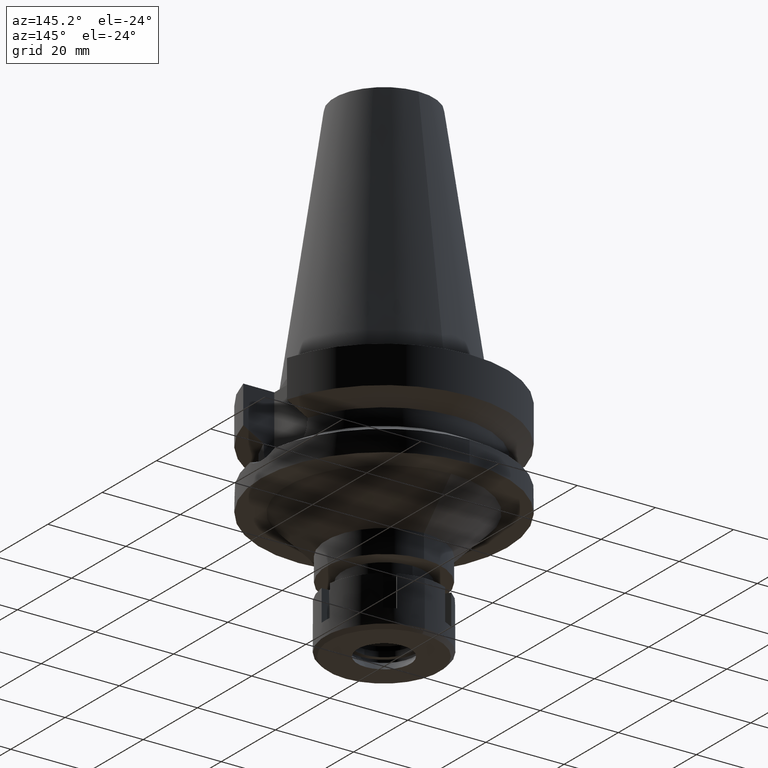
[diagram: clean part render]
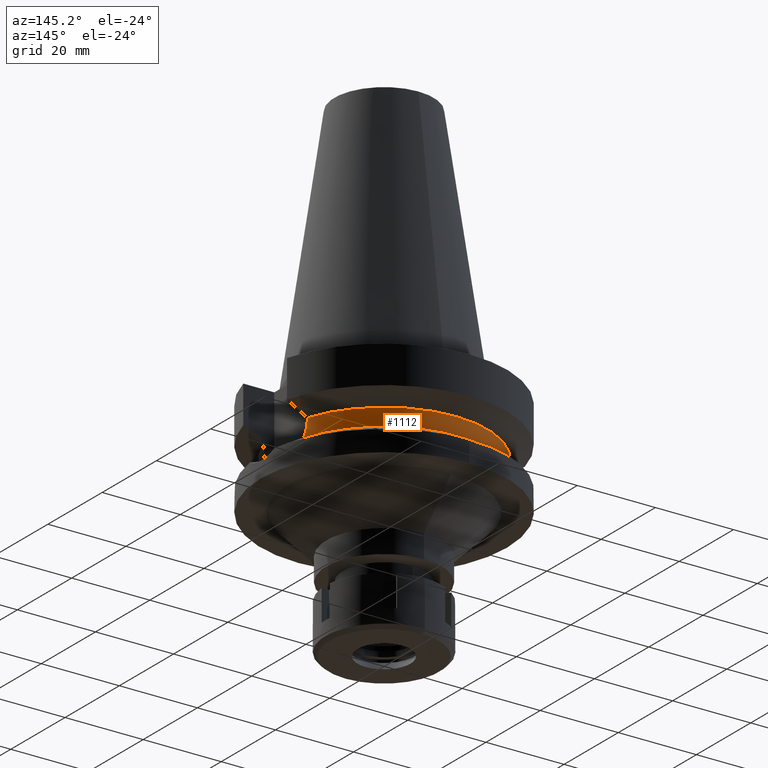
[diagram: same view with one face highlighted and labeled with its STEP entity id]
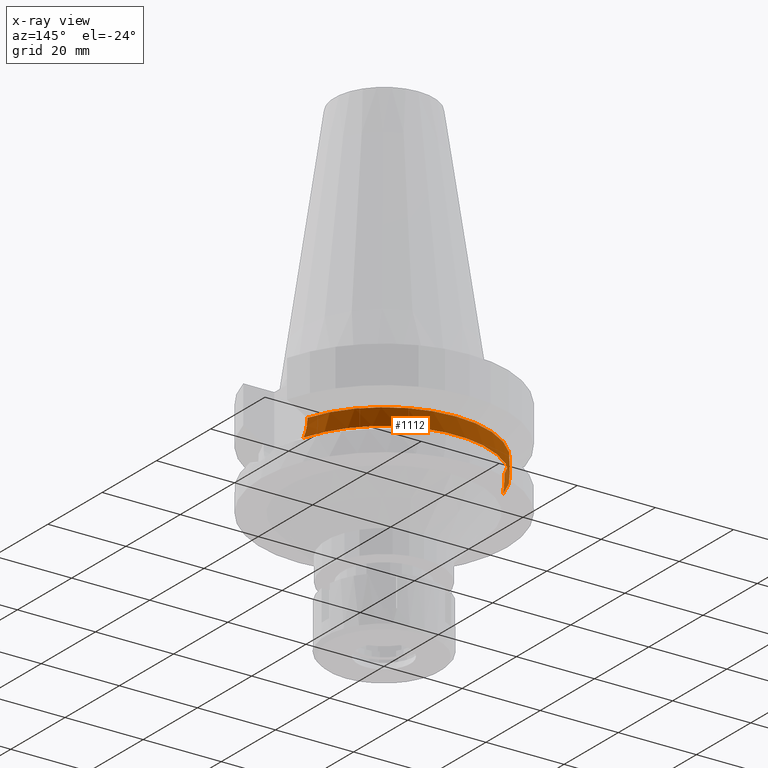
[diagram: x-ray of the same camera — body ghosted, the highlighted face saturated]
A machine part, auxiliary view. The second image highlights one B-rep face of the part: STEP entity #1112.
The next image is the same camera in x-ray: the body ghosted, the highlighted face saturated — about 2% of this face is hidden behind the body in this view.
In plain terms, the highlighted cylindrical surface (partial cylindrical patch) has radius 26.5 mm, axis along (0, 0, -1).
Its self-contained STEP definition (entity closure, byte-faithful):
#28 = CARTESIAN_POINT ( 'NONE',  ( -25.27268209811968802, 7.971799596790734910, -16.08124396125984035 ) ) ;
#84 = B_SPLINE_CURVE_WITH_KNOTS ( 'NONE', 3,
 ( #1409, #294, #1179, #28, #3103, #2493, #2477, #631, #2509, #1723, #1126, #2219, #2546, #2205 ),
 .UNSPECIFIED., .F., .F.,
 ( 4, 2, 2, 1, 1, 2, 2, 4 ),
 ( 0.0000000000000000000, 0.2500000000000218159, 0.3750000000000313638, 0.4375000000000362488, 0.4687500000000385247, 0.4843750000000385247, 0.5000000000000385247, 1.000000000000000000 ),
 .UNSPECIFIED. ) ;
#99 = CARTESIAN_POINT ( 'NONE',  ( 25.24772266958000344, 8.050000000000000711, -14.94999999999999929 ) ) ;
#134 = CARTESIAN_POINT ( 'NONE',  ( 25.48481052201388408, 7.266715036218282187, -18.43216239893522257 ) ) ;
#166 = ORIENTED_EDGE ( 'NONE', *, *, #2542, .T. ) ;
#236 = DIRECTION ( 'NONE',  ( 0.0000000000000000000, 0.0000000000000000000, -1.000000000000000000 ) ) ;
#285 = EDGE_CURVE ( 'NONE', #1099, #1447, #84, .T. ) ;
#294 = CARTESIAN_POINT ( 'NONE',  ( -25.24772266958000344, 8.050000000000016698, -15.26995863536299147 ) ) ;
#471 = CIRCLE ( 'NONE', #3119, 26.50000000000000711 ) ;
#505 = DIRECTION ( 'NONE',  ( 0.9634623335000935818, 0.2678438573619981722, 0.0000000000000000000 ) ) ;
#631 = CARTESIAN_POINT ( 'NONE',  ( -25.31202244740001461, 7.845715351219204159, -16.75285925630916140 ) ) ;
#732 = ORIENTED_EDGE ( 'NONE', *, *, #1346, .F. ) ;
#743 = AXIS2_PLACEMENT_3D ( 'NONE', #1330, #2968, #505 ) ;
#762 = DIRECTION ( 'NONE',  ( 2.970974673508918509E-06, -9.318061218959746263E-06, 0.9999999999521734795 ) ) ;
#792 = ORIENTED_EDGE ( 'NONE', *, *, #1106, .T. ) ;
#828 = VERTEX_POINT ( 'NONE', #3396 ) ;
#856 = CARTESIAN_POINT ( 'NONE',  ( 25.24772266958000344, 8.050000000000000711, -14.94999999999999929 ) ) ;
#911 = LINE ( 'NONE', #965, #2338 ) ;
#958 = CARTESIAN_POINT ( 'NONE',  ( 25.39162493938946952, 7.584889300339769491, -17.65175237885825510 ) ) ;
#965 = CARTESIAN_POINT ( 'NONE',  ( -25.24772217544000341, 8.050001549810000157, -14.45224515668999921 ) ) ;
#969 = EDGE_CURVE ( 'NONE', #828, #2447, #1024, .T. ) ;
#1001 = DIRECTION ( 'NONE',  ( -9.927419645220598748E-07, -3.113601086133874461E-06, -0.9999999999946599383 ) ) ;
#1006 = CARTESIAN_POINT ( 'NONE',  ( 25.32547736588454868, 7.802164859283096554, -16.93219376408675814 ) ) ;
#1024 = B_SPLINE_CURVE_WITH_KNOTS ( 'NONE', 3,
 ( #2021, #134, #1227, #958, #2910, #1453, #3158, #3252, #1857, #1006, #1575, #2089, #3210, #856 ),
 .UNSPECIFIED., .F., .F.,
 ( 4, 2, 2, 1, 1, 2, 2, 4 ),
 ( 0.0000000000000000000, 0.2500000000000008882, 0.3750000000000025535, 0.4375000000000021094, 0.4687500000000018874, 0.4843750000000029421, 0.5000000000000039968, 1.000000000000000000 ),
 .UNSPECIFIED. ) ;
#1099 = VERTEX_POINT ( 'NONE', #2376 ) ;
#1106 = EDGE_CURVE ( 'NONE', #828, #1447, #2805, .T. ) ;
#1112 = ADVANCED_FACE ( 'NONE', ( #2482 ), #2418, .T. ) ;
#1126 = CARTESIAN_POINT ( 'NONE',  ( -25.32117791942249951, 7.816083715564258405, -16.87657725265251329 ) ) ;
#1133 = CARTESIAN_POINT ( 'NONE',  ( 0.0000000000000000000, 2.098064896298999980E-14, 71.31999999999999318 ) ) ;
#1154 = AXIS2_PLACEMENT_3D ( 'NONE', #1133, #236, #1663 ) ;
#1166 = CARTESIAN_POINT ( 'NONE',  ( 0.0000000000000000000, 1.065333950388000029E-14, -14.45225699861000024 ) ) ;
#1179 = CARTESIAN_POINT ( 'NONE',  ( -25.25396252671491482, 8.030902051924060814, -15.59367622103044759 ) ) ;
#1218 = VECTOR ( 'NONE', #762, 1000.000000000000114 ) ;
#1227 = CARTESIAN_POINT ( 'NONE',  ( 25.44391113295673534, 7.408299074736797607, -18.11696246892093853 ) ) ;
#1292 = VERTEX_POINT ( 'NONE', #2225 ) ;
#1330 = CARTESIAN_POINT ( 'NONE',  ( 0.0000000000000000000, 0.0000000000000000000, -18.74774300138999905 ) ) ;
#1346 = EDGE_CURVE ( 'NONE', #1292, #1099, #911, .T. ) ;
#1409 = CARTESIAN_POINT ( 'NONE',  ( -25.24772266958000344, 8.050000000000000711, -14.94999999999999929 ) ) ;
#1447 = VERTEX_POINT ( 'NONE', #1760 ) ;
#1453 = CARTESIAN_POINT ( 'NONE',  ( 25.35409503809571774, 7.708922223049618161, -17.26977670179890723 ) ) ;
#1575 = CARTESIAN_POINT ( 'NONE',  ( 25.32416715502053250, 7.806414197728631876, -16.91540975489061438 ) ) ;
#1639 = CARTESIAN_POINT ( 'NONE',  ( 25.24772414826000144, 8.049995362329999793, -14.45229243648999962 ) ) ;
#1640 = VERTEX_POINT ( 'NONE', #1639 ) ;
#1663 = DIRECTION ( 'NONE',  ( 0.0000000000000000000, -1.000000000000000000, 0.0000000000000000000 ) ) ;
#1706 = DIRECTION ( 'NONE',  ( 0.0000000000000000000, 0.0000000000000000000, -1.000000000000000000 ) ) ;
#1723 = CARTESIAN_POINT ( 'NONE',  ( -25.31950540107353831, 7.821502334293923830, -16.85447843437596660 ) ) ;
#1760 = CARTESIAN_POINT ( 'NONE',  ( -25.53175183775000079, 7.097862220092999941, -18.74774300138999905 ) ) ;
#1857 = CARTESIAN_POINT ( 'NONE',  ( 25.32841847211643937, 7.792621106460854818, -16.96938725878849041 ) ) ;
#1912 = ORIENTED_EDGE ( 'NONE', *, *, #2700, .F. ) ;
#2021 = CARTESIAN_POINT ( 'NONE',  ( 25.53175183775000079, 7.097862220092999941, -18.74774300138999905 ) ) ;
#2089 = CARTESIAN_POINT ( 'NONE',  ( 25.27268413421364812, 7.973316252974504970, -16.24513481739792908 ) ) ;
#2138 = LINE ( 'NONE', #3239, #1218 ) ;
#2205 = CARTESIAN_POINT ( 'NONE',  ( -25.53175183775000079, 7.097862220092999941, -18.74774300138999905 ) ) ;
#2219 = CARTESIAN_POINT ( 'NONE',  ( -25.36813810004898073, 7.663837995410768045, -17.48799049372345138 ) ) ;
#2225 = CARTESIAN_POINT ( 'NONE',  ( -25.24772217544000341, 8.050001549810000157, -14.45224515668999921 ) ) ;
#2243 = DIRECTION ( 'NONE',  ( -0.9527442516822307583, 0.3037735849057093818, 0.0000000000000000000 ) ) ;
#2338 = VECTOR ( 'NONE', #1001, 1000.000000000000114 ) ;
#2376 = CARTESIAN_POINT ( 'NONE',  ( -25.24772266958000344, 8.050000000000000711, -14.94999999999999929 ) ) ;
#2418 = CYLINDRICAL_SURFACE ( 'NONE', #1154, 26.50000000000000000 ) ;
#2447 = VERTEX_POINT ( 'NONE', #99 ) ;
#2477 = CARTESIAN_POINT ( 'NONE',  ( -25.30212642397510336, 7.877652634818784527, -16.61049091538031064 ) ) ;
#2482 = FACE_OUTER_BOUND ( 'NONE', #2728, .T. ) ;
#2493 = CARTESIAN_POINT ( 'NONE',  ( -25.29452159809190803, 7.902075829274846086, -16.48836005869118893 ) ) ;
#2509 = CARTESIAN_POINT ( 'NONE',  ( -25.31648297027380679, 7.831286608442219688, -16.81383661537218543 ) ) ;
#2542 = EDGE_CURVE ( 'NONE', #1292, #1640, #471, .T. ) ;
#2546 = CARTESIAN_POINT ( 'NONE',  ( -25.43785506089929171, 7.435618734730004675, -18.11648669890458407 ) ) ;
#2700 = EDGE_CURVE ( 'NONE', #2447, #1640, #2138, .T. ) ;
#2728 = EDGE_LOOP ( 'NONE', ( #166, #1912, #3426, #792, #3265, #732 ) ) ;
#2805 = CIRCLE ( 'NONE', #743, 26.49999999999998224 ) ;
#2910 = CARTESIAN_POINT ( 'NONE',  ( 25.37570668987012112, 7.637796999689727251, -17.49792859799481448 ) ) ;
#2968 = DIRECTION ( 'NONE',  ( 0.0000000000000000000, 0.0000000000000000000, 1.000000000000000000 ) ) ;
#3103 = CARTESIAN_POINT ( 'NONE',  ( -25.28048191953834589, 7.947027004755552682, -16.24409354871644595 ) ) ;
#3119 = AXIS2_PLACEMENT_3D ( 'NONE', #1166, #1706, #2243 ) ;
#3158 = CARTESIAN_POINT ( 'NONE',  ( 25.34385564283465797, 7.742426194080676893, -17.15634504640316749 ) ) ;
#3210 = CARTESIAN_POINT ( 'NONE',  ( 25.24772266958000344, 8.050000000000000711, -15.58988314849633561 ) ) ;
#3239 = CARTESIAN_POINT ( 'NONE',  ( 25.24772266958000344, 8.050000000000000711, -14.94999999999999929 ) ) ;
#3252 = CARTESIAN_POINT ( 'NONE',  ( 25.33290093529253895, 7.778067760096087468, -17.02527487563960307 ) ) ;
#3265 = ORIENTED_EDGE ( 'NONE', *, *, #285, .F. ) ;
#3396 = CARTESIAN_POINT ( 'NONE',  ( 25.53175183775000079, 7.097862220092999941, -18.74774300138999905 ) ) ;
#3426 = ORIENTED_EDGE ( 'NONE', *, *, #969, .F. ) ;